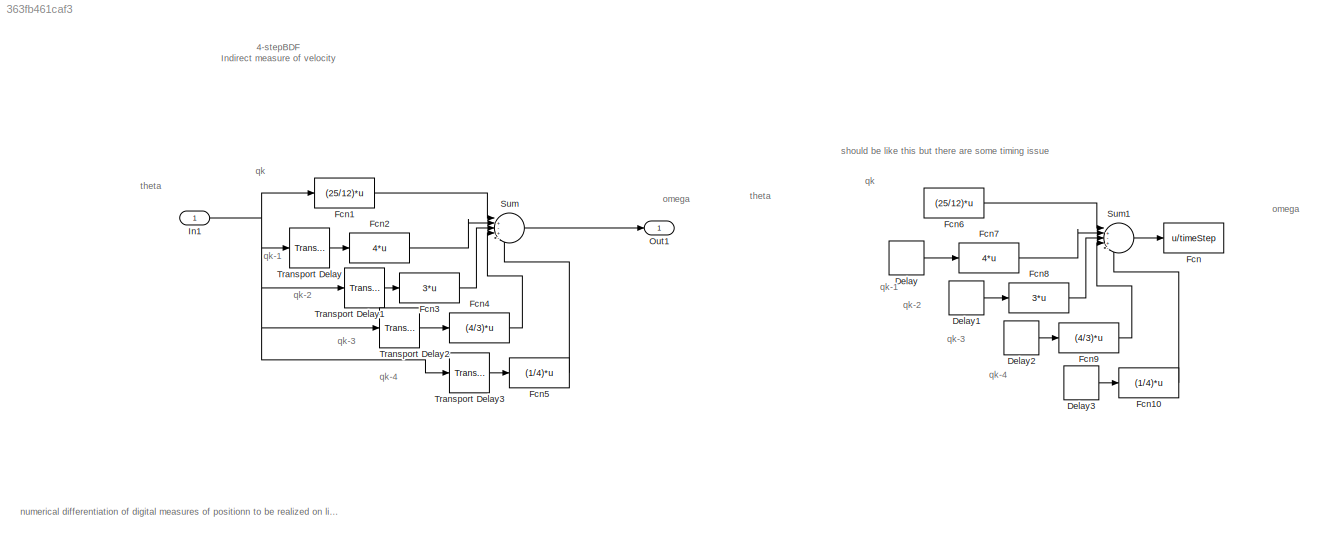
MODEL slx_363fb461caf3
KIND model
CONFIG AbsTol = auto
CONFIG EnableMultiTasking = off
CONFIG FixedStep = auto
CONFIG MaxStep = auto
CONFIG MinStep = auto
CONFIG RelTol = 1e-3
CONFIG SampleTimeConstraint = Unconstrained
CONFIG Solver = VariableStepAuto
CONFIG SolverName = VariableStepAuto
CONFIG StartTime = 0.0
CONFIG StopTime = 10.0
BLOCK [Delay] Delay
  Commented = on
  DelayLength = 1
  InitialCondition = 0
  InputPortMap = u0
  Ports = [1, 1]
  SampleTime = timeStep
BLOCK [Delay] Delay1
  Commented = on
  InitialCondition = 0
  InputPortMap = u0
  Ports = [1, 1]
  SampleTime = timeStep
BLOCK [Delay] Delay2
  Commented = on
  DelayLength = 3
  InitialCondition = 0
  InputPortMap = u0
  Ports = [1, 1]
  SampleTime = timeStep
BLOCK [Delay] Delay3
  Commented = on
  DelayLength = 4
  InitialCondition = 0
  InputPortMap = u0
  Ports = [1, 1]
  SampleTime = timeStep
BLOCK [Fcn] Fcn
  Commented = on
  Expr = u/timeStep
BLOCK [Fcn] Fcn1
  Expr = (25/12)*u
BLOCK [Fcn] Fcn10
  Commented = on
  Expr = (1/4)*u
BLOCK [Fcn] Fcn2
  Expr = 4*u
BLOCK [Fcn] Fcn3
  Expr = 3*u
BLOCK [Fcn] Fcn4
  Expr = (4/3)*u
BLOCK [Fcn] Fcn5
  Expr = (1/4)*u
BLOCK [Fcn] Fcn6
  Commented = on
  Expr = (25/12)*u
BLOCK [Fcn] Fcn7
  Commented = on
  Expr = 4*u
BLOCK [Fcn] Fcn8
  Commented = on
  Expr = 3*u
BLOCK [Fcn] Fcn9
  Commented = on
  Expr = (4/3)*u
BLOCK [Inport] In1
  IconDisplay = Port number
BLOCK [Outport] Out1
  IconDisplay = Port number
BLOCK [Sum] Sum
  IconShape = round
  InputSameDT = off
  Inputs = |+-+-+
  OutDataTypeStr = Inherit: Inherit via internal rule
  Ports = [5, 1]
  SaturateOnIntegerOverflow = off
BLOCK [Sum] Sum1
  Commented = on
  IconShape = round
  InputSameDT = off
  Inputs = |+-+-+
  OutDataTypeStr = Inherit: Inherit via internal rule
  Ports = [5, 1]
  SaturateOnIntegerOverflow = off
BLOCK [TransportDelay] Transport Delay
  Ports = [1, 1]
BLOCK [TransportDelay] Transport Delay1
  DelayTime = 2
  Ports = [1, 1]
BLOCK [TransportDelay] Transport Delay2
  DelayTime = 3
  Ports = [1, 1]
BLOCK [TransportDelay] Transport Delay3
  DelayTime = 4
  Ports = [1, 1]
ANNOTATION (root): 4-stepBDF Indirect measure of velocity
ANNOTATION (root): numerical differentiation of digital measures of positionn to be realized on line with Backward Differentiation Formulas (BDFs)
ANNOTATION (root): omega
ANNOTATION (root): qk
ANNOTATION (root): qk-1
ANNOTATION (root): qk-2
ANNOTATION (root): qk-3
ANNOTATION (root): qk-4
ANNOTATION (root): should be like this but there are some timing issue
ANNOTATION (root): theta
LINE Delay1:1 -> Fcn8:1
LINE Delay2:1 -> Fcn9:1
LINE Delay3:1 -> Fcn10:1
LINE Delay:1 -> Fcn7:1
LINE Fcn10:1 -> Sum1:5
LINE Fcn1:1 -> Sum:1
LINE Fcn2:1 -> Sum:2
LINE Fcn3:1 -> Sum:3
LINE Fcn4:1 -> Sum:4
LINE Fcn5:1 -> Sum:5
LINE Fcn6:1 -> Sum1:1
LINE Fcn7:1 -> Sum1:2
LINE Fcn8:1 -> Sum1:3
LINE Fcn9:1 -> Sum1:4
NET In1:1 -> Fcn1:1, Transport Delay1:1, Transport Delay2:1, Transport Delay3:1, Transport Delay:1
LINE Sum1:1 -> Fcn:1
LINE Sum:1 -> Out1:1
LINE Transport Delay1:1 -> Fcn3:1
LINE Transport Delay2:1 -> Fcn4:1
LINE Transport Delay3:1 -> Fcn5:1
LINE Transport Delay:1 -> Fcn2:1
note: NET lines group one-source signal fan-out (src -> all destinations, sorted); 1:1 wires keep LINE
